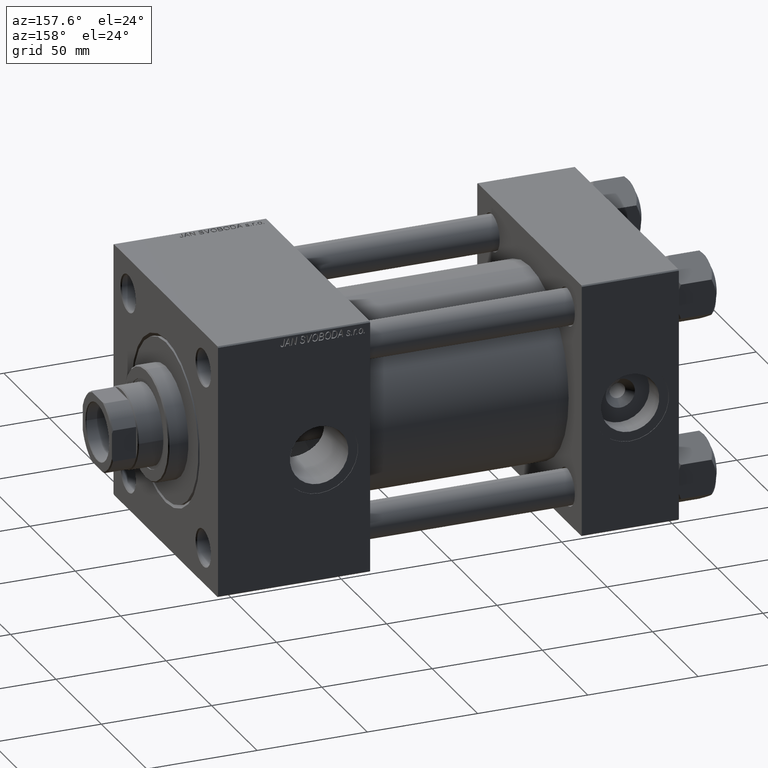
[diagram: clean part render]
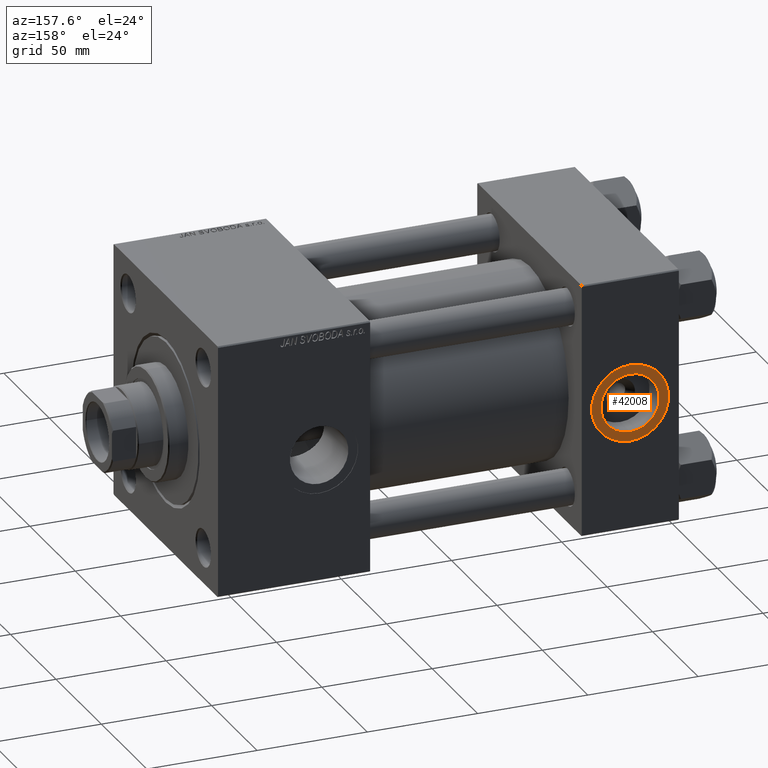
[diagram: same view with one face highlighted and labeled with its STEP entity id]
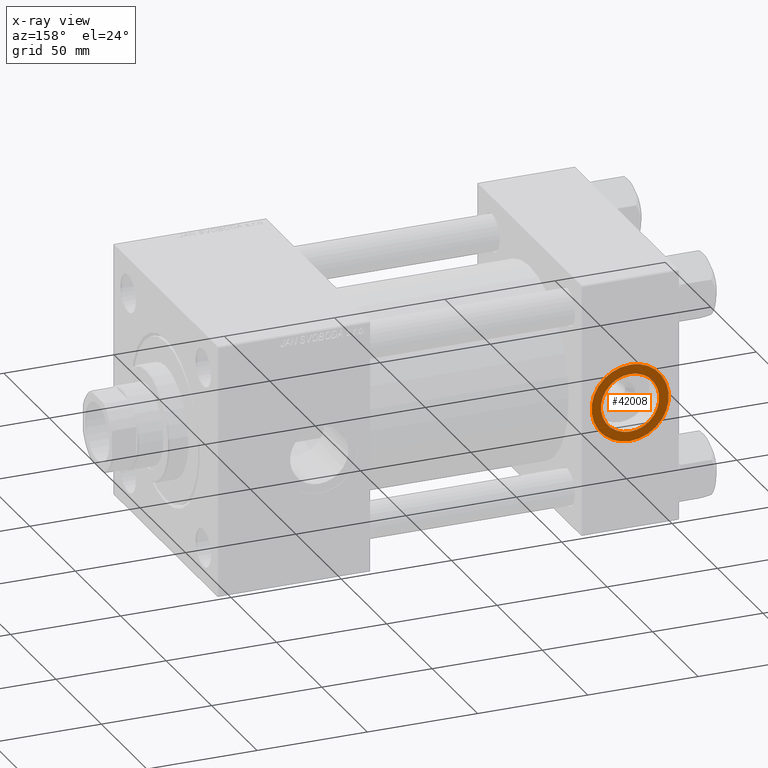
[diagram: x-ray of the same camera — body ghosted, the highlighted face saturated]
A machine part, auxiliary view. The second image highlights one B-rep face of the part: STEP entity #42008.
The next image is the same camera in x-ray: the body ghosted, the highlighted face saturated — about 0% of this face is hidden behind the body in this view.
In plain terms, the highlighted planar face has unit normal (0, 1, 0).
Its self-contained STEP definition (entity closure, byte-faithful):
#2107 = AXIS2_PLACEMENT_3D ( 'NONE', #17537, #20869, #8858 ) ;
#2748 = AXIS2_PLACEMENT_3D ( 'NONE', #27141, #15878, #22783 ) ;
#2915 = AXIS2_PLACEMENT_3D ( 'NONE', #49316, #26288, #22938 ) ;
#4448 = ORIENTED_EDGE ( 'NONE', *, *, #45349, .T. ) ;
#7123 = CARTESIAN_POINT ( 'NONE',  ( 22.00000000000000000, 57.29999999999999716, 17.50000000000000000 ) ) ;
#7312 = EDGE_CURVE ( 'NONE', #48535, #36495, #24842, .T. ) ;
#8858 = DIRECTION ( 'NONE',  ( 0.000000000000000000, 0.000000000000000000, 1.000000000000000000 ) ) ;
#10151 = FACE_BOUND ( 'NONE', #40400, .T. ) ;
#10285 = CIRCLE ( 'NONE', #2915, 13.22000000000000419 ) ;
#15878 = DIRECTION ( 'NONE',  ( 0.000000000000000000, 1.000000000000000000, 0.000000000000000000 ) ) ;
#17537 = CARTESIAN_POINT ( 'NONE',  ( 22.00000000000000000, 57.29999999999999716, 0.000000000000000000 ) ) ;
#20869 = DIRECTION ( 'NONE',  ( 0.000000000000000000, 1.000000000000000000, 0.000000000000000000 ) ) ;
#22079 = ORIENTED_EDGE ( 'NONE', *, *, #44495, .F. ) ;
#22783 = DIRECTION ( 'NONE',  ( 0.000000000000000000, 0.000000000000000000, 1.000000000000000000 ) ) ;
#22938 = DIRECTION ( 'NONE',  ( 0.000000000000000000, 0.000000000000000000, 1.000000000000000000 ) ) ;
#24194 = CIRCLE ( 'NONE', #2107, 17.50000000000000000 ) ;
#24451 = CARTESIAN_POINT ( 'NONE',  ( 22.00000000000000000, 57.29999999999999716, 13.22000000000000419 ) ) ;
#24842 = CIRCLE ( 'NONE', #2748, 17.50000000000000000 ) ;
#25401 = CARTESIAN_POINT ( 'NONE',  ( 22.00000000000000000, 57.29999999999999716, 0.000000000000000000 ) ) ;
#25763 = DIRECTION ( 'NONE',  ( 0.000000000000000000, 1.000000000000000000, 0.000000000000000000 ) ) ;
#25805 = AXIS2_PLACEMENT_3D ( 'NONE', #25401, #48198, #36905 ) ;
#26288 = DIRECTION ( 'NONE',  ( 0.000000000000000000, 1.000000000000000000, 0.000000000000000000 ) ) ;
#27141 = CARTESIAN_POINT ( 'NONE',  ( 22.00000000000000000, 57.29999999999999716, 0.000000000000000000 ) ) ;
#29349 = FACE_OUTER_BOUND ( 'NONE', #49934, .T. ) ;
#32329 = CIRCLE ( 'NONE', #25805, 13.22000000000000419 ) ;
#36495 = VERTEX_POINT ( 'NONE', #40473 ) ;
#36905 = DIRECTION ( 'NONE',  ( 0.000000000000000000, 0.000000000000000000, 1.000000000000000000 ) ) ;
#37010 = DIRECTION ( 'NONE',  ( 0.000000000000000000, -0.000000000000000000, 1.000000000000000000 ) ) ;
#37065 = ORIENTED_EDGE ( 'NONE', *, *, #7312, .T. ) ;
#37394 = VERTEX_POINT ( 'NONE', #40849 ) ;
#40400 = EDGE_LOOP ( 'NONE', ( #47145, #22079 ) ) ;
#40473 = CARTESIAN_POINT ( 'NONE',  ( 22.00000000000000355, 57.29999999999999716, -17.50000000000000000 ) ) ;
#40849 = CARTESIAN_POINT ( 'NONE',  ( 22.00000000000000000, 57.29999999999999716, -13.22000000000000419 ) ) ;
#40861 = PLANE ( 'NONE',  #45461 ) ;
#41369 = CARTESIAN_POINT ( 'NONE',  ( 22.00000000000000000, 57.29999999999999716, 0.000000000000000000 ) ) ;
#42008 = ADVANCED_FACE ( 'NONE', ( #10151, #29349 ), #40861, .T. ) ;
#42963 = VERTEX_POINT ( 'NONE', #24451 ) ;
#44495 = EDGE_CURVE ( 'NONE', #37394, #42963, #32329, .T. ) ;
#45171 = EDGE_CURVE ( 'NONE', #42963, #37394, #10285, .T. ) ;
#45349 = EDGE_CURVE ( 'NONE', #36495, #48535, #24194, .T. ) ;
#45461 = AXIS2_PLACEMENT_3D ( 'NONE', #41369, #25763, #37010 ) ;
#47145 = ORIENTED_EDGE ( 'NONE', *, *, #45171, .F. ) ;
#48198 = DIRECTION ( 'NONE',  ( 0.000000000000000000, 1.000000000000000000, 0.000000000000000000 ) ) ;
#48535 = VERTEX_POINT ( 'NONE', #7123 ) ;
#49316 = CARTESIAN_POINT ( 'NONE',  ( 22.00000000000000000, 57.29999999999999716, 0.000000000000000000 ) ) ;
#49934 = EDGE_LOOP ( 'NONE', ( #37065, #4448 ) ) ;